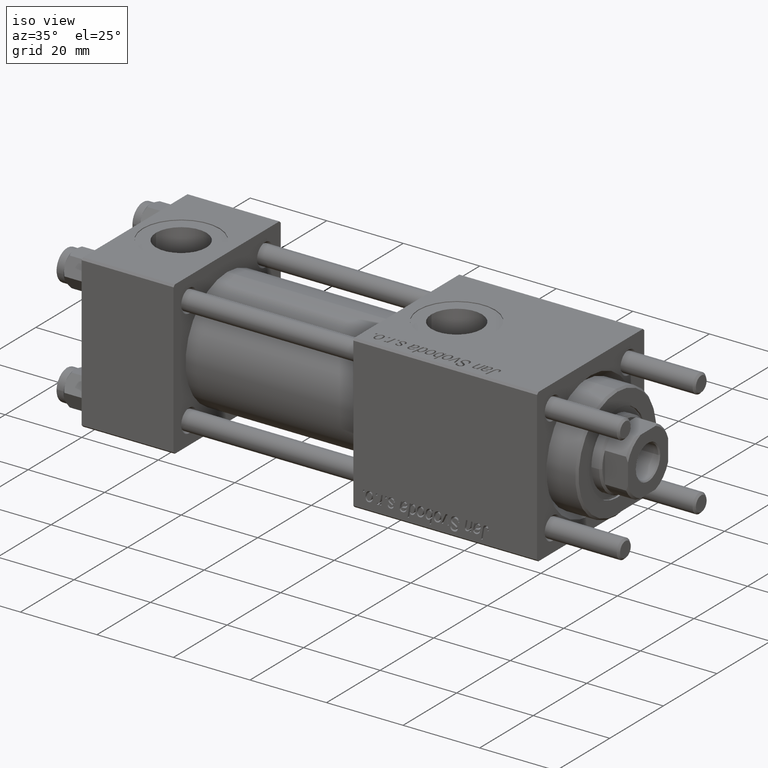
[diagram: clean part render]
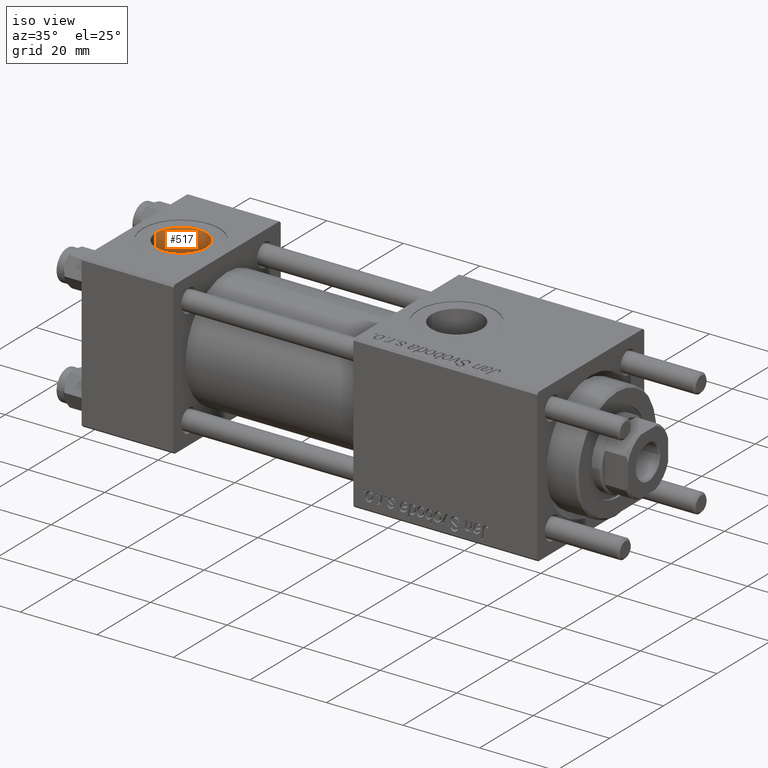
[diagram: same view with one face highlighted and labeled with its STEP entity id]
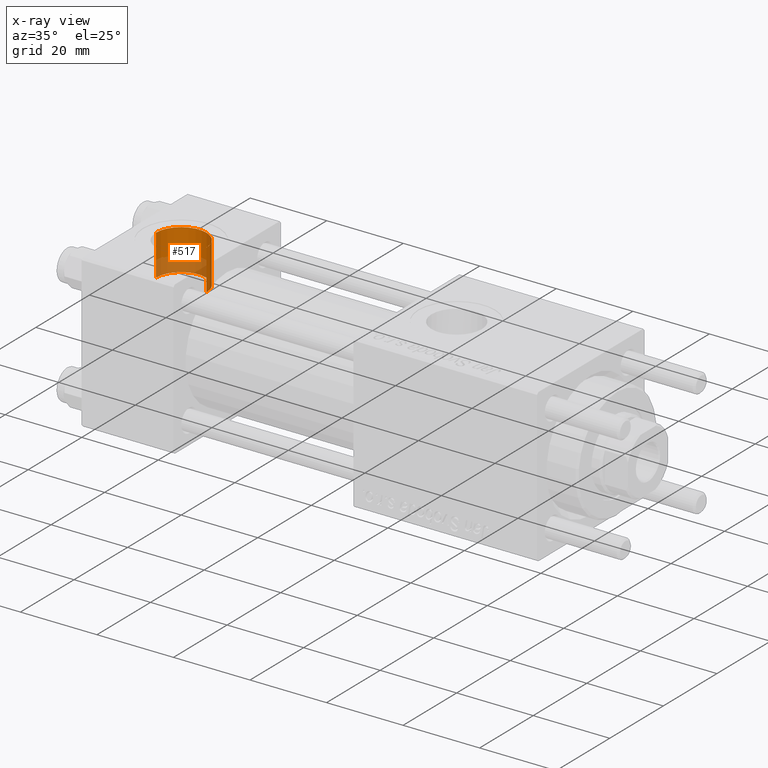
[diagram: x-ray of the same camera — body ghosted, the highlighted face saturated]
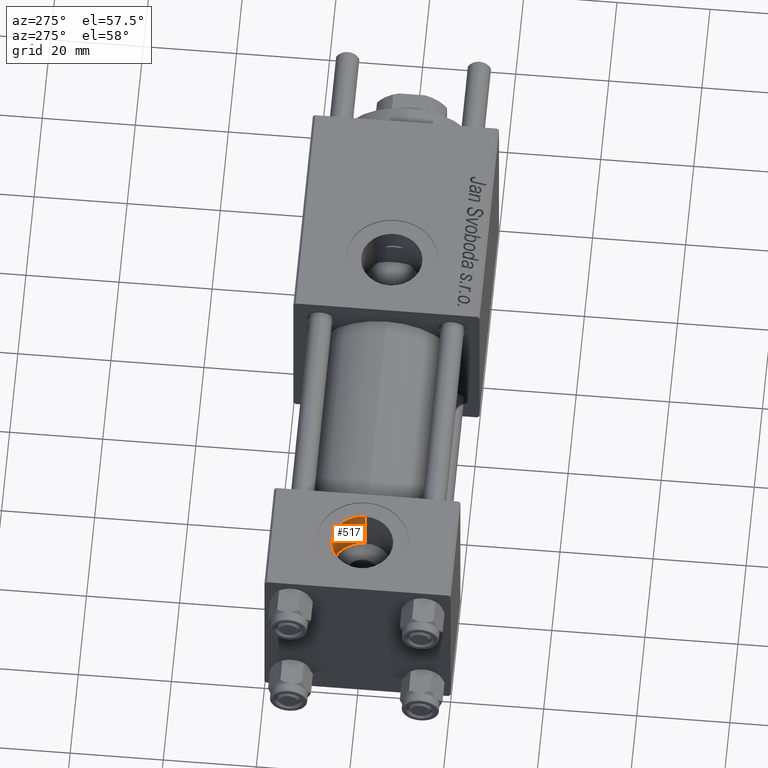
[diagram: same view with one face highlighted and labeled with its STEP entity id]
A machine part, iso view. The second image highlights one B-rep face of the part: STEP entity #517.
The next image is the same camera in x-ray: the body ghosted, the highlighted face saturated — about 34% of this face is hidden behind the body in this view.
A second angle (auxiliary view) of the same face is appended — the face is thin or edge-on in the first view.
In plain terms, the highlighted cylindrical surface (edge-blend (fillet) strip) has radius 6.58 mm, axis along (0, 0, 1).
Its self-contained STEP definition (entity closure, byte-faithful):
#269 = CARTESIAN_POINT ( 'NONE',  ( 5.420000000000000817, 8.058175938389596335E-16, 9.165987261146492315 ) ) ;
#517 = ADVANCED_FACE ( 'NONE', ( #54727 ), #7152, .F. ) ;
#1819 = CARTESIAN_POINT ( 'NONE',  ( 18.57999999999999829, 1.540743955509788682E-30, 9.165987261146492315 ) ) ;
#2121 = VECTOR ( 'NONE', #43554, 1000.000000000000000 ) ;
#6091 = EDGE_CURVE ( 'NONE', #52699, #17422, #23597, .T. ) ;
#7152 = CYLINDRICAL_SURFACE ( 'NONE', #53610, 6.579999999999999183 ) ;
#7849 = CARTESIAN_POINT ( 'NONE',  ( 18.57999999999999829, 1.540743955509788682E-30, 19.79999999999999716 ) ) ;
#8876 = LINE ( 'NONE', #26650, #2121 ) ;
#11146 = AXIS2_PLACEMENT_3D ( 'NONE', #18270, #36045, #36322 ) ;
#11465 = DIRECTION ( 'NONE',  ( 0.000000000000000000, 0.000000000000000000, 1.000000000000000000 ) ) ;
#14254 = CARTESIAN_POINT ( 'NONE',  ( 18.57999999999999829, 1.540743955509788682E-30, 9.199999999999995737 ) ) ;
#15498 = CARTESIAN_POINT ( 'NONE',  ( 12.00000000000000000, 1.540743955509788682E-30, 9.199999999999995737 ) ) ;
#17422 = VERTEX_POINT ( 'NONE', #35966 ) ;
#17551 = CARTESIAN_POINT ( 'NONE',  ( 12.00000000000000000, 1.540743955509788682E-30, 19.79999999999999716 ) ) ;
#18270 = CARTESIAN_POINT ( 'NONE',  ( 12.00000000000000000, 1.540743955509788682E-30, 9.165987261146492315 ) ) ;
#18492 = VECTOR ( 'NONE', #19110, 1000.000000000000000 ) ;
#19110 = DIRECTION ( 'NONE',  ( -0.000000000000000000, -0.000000000000000000, 1.000000000000000000 ) ) ;
#20062 = DIRECTION ( 'NONE',  ( 1.000000000000000000, 0.000000000000000000, 0.000000000000000000 ) ) ;
#23597 = CIRCLE ( 'NONE', #43740, 6.579999999999999183 ) ;
#26650 = CARTESIAN_POINT ( 'NONE',  ( 5.420000000000000817, 8.058175938389596335E-16, 9.199999999999995737 ) ) ;
#35133 = ORIENTED_EDGE ( 'NONE', *, *, #6091, .T. ) ;
#35966 = CARTESIAN_POINT ( 'NONE',  ( 5.420000000000000817, 8.058175938389596335E-16, 19.79999999999999716 ) ) ;
#36045 = DIRECTION ( 'NONE',  ( -0.000000000000000000, -0.000000000000000000, -1.000000000000000000 ) ) ;
#36322 = DIRECTION ( 'NONE',  ( 1.000000000000000000, 0.000000000000000000, 0.000000000000000000 ) ) ;
#41835 = DIRECTION ( 'NONE',  ( -0.000000000000000000, -0.000000000000000000, 1.000000000000000000 ) ) ;
#43554 = DIRECTION ( 'NONE',  ( -0.000000000000000000, -0.000000000000000000, 1.000000000000000000 ) ) ;
#43740 = AXIS2_PLACEMENT_3D ( 'NONE', #17551, #11465, #50713 ) ;
#44627 = LINE ( 'NONE', #14254, #18492 ) ;
#45027 = CIRCLE ( 'NONE', #11146, 6.579999999999999183 ) ;
#45398 = ORIENTED_EDGE ( 'NONE', *, *, #55163, .F. ) ;
#49159 = ORIENTED_EDGE ( 'NONE', *, *, #50390, .T. ) ;
#49963 = VERTEX_POINT ( 'NONE', #1819 ) ;
#50220 = EDGE_LOOP ( 'NONE', ( #45398, #49159, #51045, #35133 ) ) ;
#50390 = EDGE_CURVE ( 'NONE', #55980, #49963, #45027, .T. ) ;
#50450 = EDGE_CURVE ( 'NONE', #49963, #52699, #44627, .T. ) ;
#50713 = DIRECTION ( 'NONE',  ( 1.000000000000000000, 0.000000000000000000, 0.000000000000000000 ) ) ;
#51045 = ORIENTED_EDGE ( 'NONE', *, *, #50450, .T. ) ;
#52699 = VERTEX_POINT ( 'NONE', #7849 ) ;
#53610 = AXIS2_PLACEMENT_3D ( 'NONE', #15498, #41835, #20062 ) ;
#54727 = FACE_OUTER_BOUND ( 'NONE', #50220, .T. ) ;
#55163 = EDGE_CURVE ( 'NONE', #55980, #17422, #8876, .T. ) ;
#55980 = VERTEX_POINT ( 'NONE', #269 ) ;